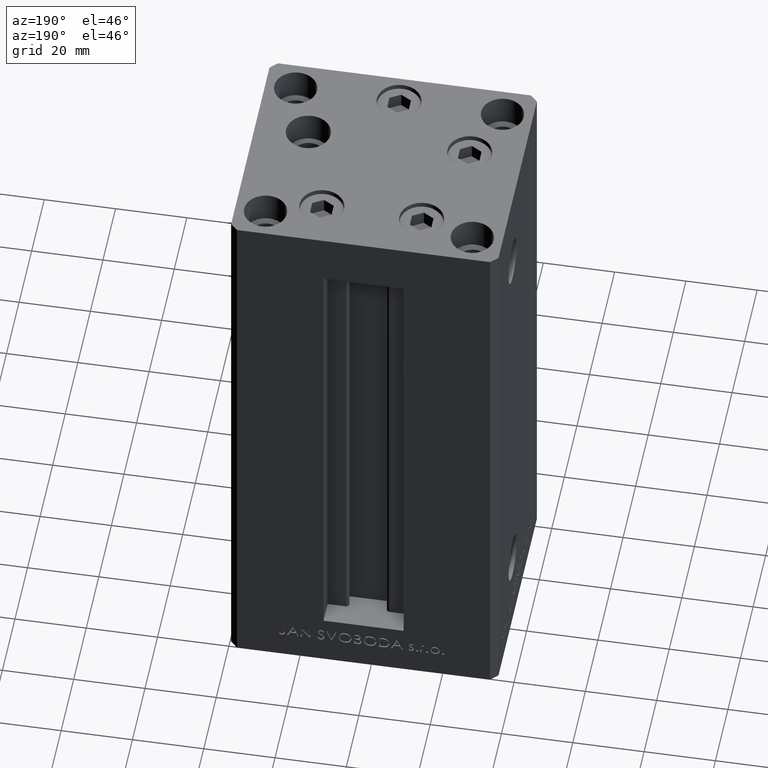
[diagram: clean part render]
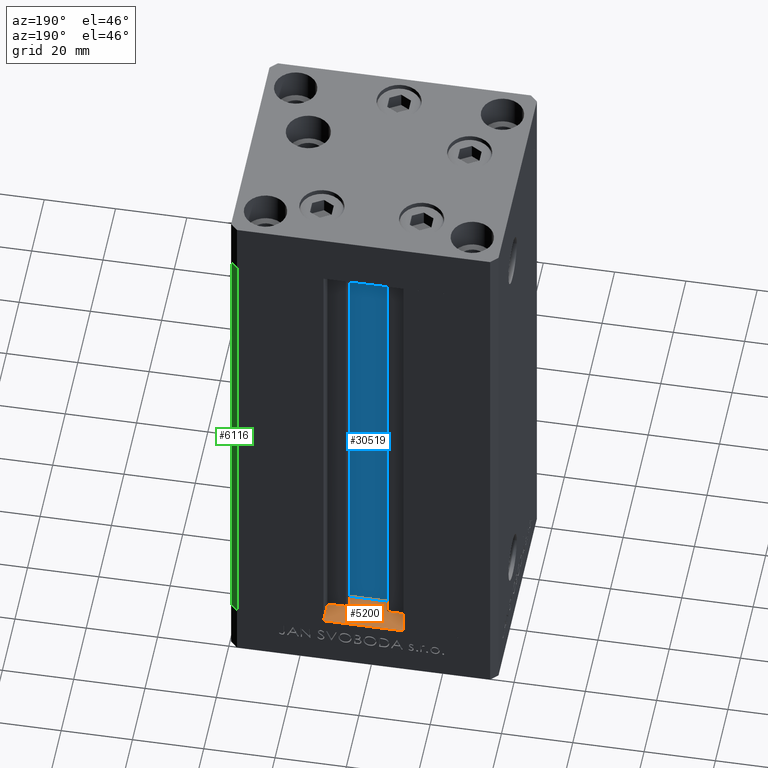
[diagram: same view with three faces highlighted in distinct colors, each labeled with its STEP entity id]
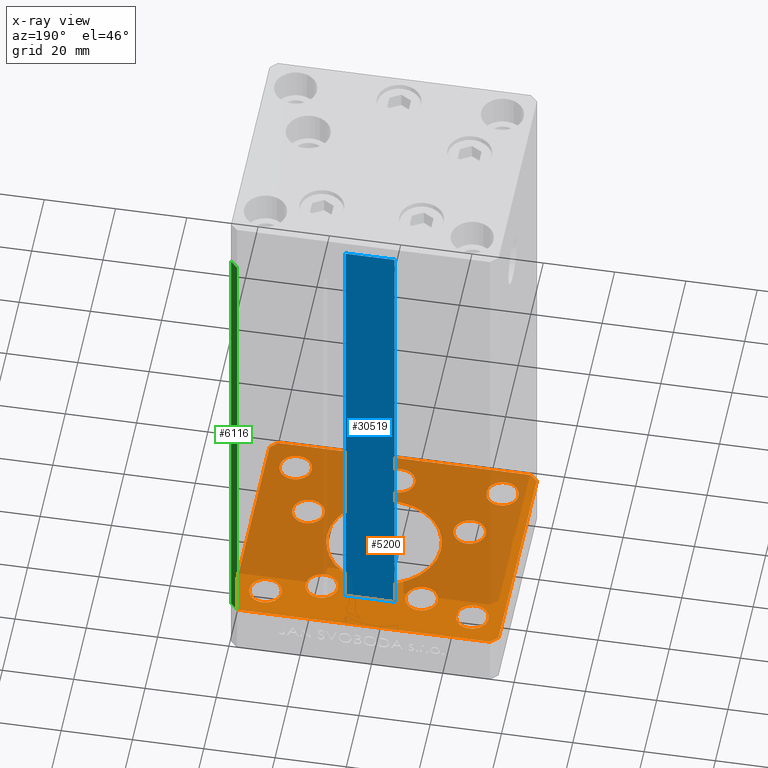
[diagram: x-ray of the same camera — body ghosted, the three highlighted faces saturated]
A machine part, auxiliary view with three faces highlighted in distinct colors.
The next image is the same camera in x-ray (body ghosted, the three faces saturated) — at least one of them is partly hidden behind the body in this view.
Their STEP definitions:

[orange] entity #5200 — the highlighted planar face has unit normal (0, 0, -1).
#98 = AXIS2_PLACEMENT_3D ( 'NONE', #27122, #42443, #15809 ) ;
#193 = CARTESIAN_POINT ( 'NONE',  ( -18.12741699796953654, -8.000000000000000000, -15.00000000000000000 ) ) ;
#447 = VERTEX_POINT ( 'NONE', #45679 ) ;
#465 = ORIENTED_EDGE ( 'NONE', *, *, #28092, .T. ) ;
#982 = CARTESIAN_POINT ( 'NONE',  ( -16.00000000000000000, 1.959434878635765131E-15, -15.00000000000000000 ) ) ;
#1144 = DIRECTION ( 'NONE',  ( 1.000000000000000000, 0.000000000000000000, 0.000000000000000000 ) ) ;
#1308 = ORIENTED_EDGE ( 'NONE', *, *, #4272, .F. ) ;
#1360 = ORIENTED_EDGE ( 'NONE', *, *, #49500, .T. ) ;
#1913 = CIRCLE ( 'NONE', #25961, 4.499999999999997335 ) ;
#2044 = DIRECTION ( 'NONE',  ( 1.000000000000000000, 0.000000000000000000, 0.000000000000000000 ) ) ;
#2185 = VERTEX_POINT ( 'NONE', #16917 ) ;
#2422 = AXIS2_PLACEMENT_3D ( 'NONE', #45399, #23013, #6983 ) ;
#2504 = DIRECTION ( 'NONE',  ( -0.000000000000000000, 0.000000000000000000, 1.000000000000000000 ) ) ;
#2506 = ORIENTED_EDGE ( 'NONE', *, *, #9465, .F. ) ;
#2602 = CIRCLE ( 'NONE', #12241, 4.500000000000000888 ) ;
#2909 = AXIS2_PLACEMENT_3D ( 'NONE', #30500, #10236, #32861 ) ;
#3332 = EDGE_CURVE ( 'NONE', #21086, #5538, #14651, .T. ) ;
#3494 = DIRECTION ( 'NONE',  ( -0.000000000000000000, 0.000000000000000000, 1.000000000000000000 ) ) ;
#3669 = EDGE_CURVE ( 'NONE', #33917, #28512, #39293, .T. ) ;
#4084 = ORIENTED_EDGE ( 'NONE', *, *, #13695, .F. ) ;
#4167 = CIRCLE ( 'NONE', #38652, 4.499999999999997335 ) ;
#4217 = EDGE_LOOP ( 'NONE', ( #42261, #39247, #46666, #32651, #19321, #2506, #42089, #20006 ) ) ;
#4237 = EDGE_CURVE ( 'NONE', #16889, #447, #16736, .T. ) ;
#4272 = EDGE_CURVE ( 'NONE', #26963, #2185, #31304, .T. ) ;
#4527 = CARTESIAN_POINT ( 'NONE',  ( -33.50000000000000000, 24.00000000000000711, -15.00000000000000000 ) ) ;
#4832 = DIRECTION ( 'NONE',  ( -0.7071067811865524577, -0.7071067811865426878, 0.000000000000000000 ) ) ;
#4897 = CARTESIAN_POINT ( 'NONE',  ( -24.50000000000000000, 24.00000000000000711, -15.00000000000000000 ) ) ;
#4898 = DIRECTION ( 'NONE',  ( 1.000000000000000000, 0.000000000000000000, 0.000000000000000000 ) ) ;
#5200 = ADVANCED_FACE ( 'NONE', ( #14052, #22082, #10535, #29877, #40922, #21827, #25855, #17317, #45192, #18303, #33649 ), #25109, .F. ) ;
#5432 = LINE ( 'NONE', #39335, #6366 ) ;
#5538 = VERTEX_POINT ( 'NONE', #29692 ) ;
#5726 = CARTESIAN_POINT ( 'NONE',  ( 24.50000000000000000, 24.00000000000000355, -15.00000000000000000 ) ) ;
#5842 = VERTEX_POINT ( 'NONE', #10796 ) ;
#5879 = EDGE_CURVE ( 'NONE', #5842, #41994, #21346, .T. ) ;
#6027 = CARTESIAN_POINT ( 'NONE',  ( 0.000000000000000000, 0.000000000000000000, -15.00000000000000000 ) ) ;
#6029 = CARTESIAN_POINT ( 'NONE',  ( 0.000000000000000000, -24.00000000000001066, -15.00000000000000000 ) ) ;
#6218 = EDGE_CURVE ( 'NONE', #447, #16889, #44876, .T. ) ;
#6366 = VECTOR ( 'NONE', #20245, 1000.000000000000000 ) ;
#6640 = ORIENTED_EDGE ( 'NONE', *, *, #9727, .T. ) ;
#6826 = DIRECTION ( 'NONE',  ( 1.000000000000000000, 0.000000000000000000, 0.000000000000000000 ) ) ;
#6983 = DIRECTION ( 'NONE',  ( 1.000000000000000000, 0.000000000000000000, 0.000000000000000000 ) ) ;
#8094 = CIRCLE ( 'NONE', #98, 4.500000000000000888 ) ;
#8763 = CARTESIAN_POINT ( 'NONE',  ( 0.000000000000000000, 0.000000000000000000, -15.00000000000000000 ) ) ;
#9426 = CARTESIAN_POINT ( 'NONE',  ( 0.000000000000000000, -24.00000000000001066, -15.00000000000000000 ) ) ;
#9465 = EDGE_CURVE ( 'NONE', #41175, #15720, #46278, .T. ) ;
#9727 = EDGE_CURVE ( 'NONE', #10709, #15275, #8094, .T. ) ;
#9739 = AXIS2_PLACEMENT_3D ( 'NONE', #33226, #29445, #44755 ) ;
#9844 = CARTESIAN_POINT ( 'NONE',  ( -29.00000000000000000, 24.00000000000000711, -15.00000000000000000 ) ) ;
#10236 = DIRECTION ( 'NONE',  ( -0.000000000000000000, 0.000000000000000000, 1.000000000000000000 ) ) ;
#10282 = VERTEX_POINT ( 'NONE', #20663 ) ;
#10535 = FACE_BOUND ( 'NONE', #35045, .T. ) ;
#10709 = VERTEX_POINT ( 'NONE', #16824 ) ;
#10796 = CARTESIAN_POINT ( 'NONE',  ( 35.50000000000000000, 32.49999999999999289, -15.00000000000000000 ) ) ;
#10845 = ORIENTED_EDGE ( 'NONE', *, *, #44516, .T. ) ;
#10921 = VERTEX_POINT ( 'NONE', #5726 ) ;
#11122 = CARTESIAN_POINT ( 'NONE',  ( 33.50000000000000000, 24.00000000000000355, -15.00000000000000000 ) ) ;
#11642 = CARTESIAN_POINT ( 'NONE',  ( 13.99106857963324124, 19.50000000000000000, -15.00000000000000000 ) ) ;
#11790 = CARTESIAN_POINT ( 'NONE',  ( -9.491068579633243019, 19.50000000000000000, -15.00000000000000000 ) ) ;
#11864 = EDGE_LOOP ( 'NONE', ( #44405, #16510 ) ) ;
#12006 = VECTOR ( 'NONE', #17564, 1000.000000000000000 ) ;
#12241 = AXIS2_PLACEMENT_3D ( 'NONE', #46840, #31770, #4898 ) ;
#12398 = DIRECTION ( 'NONE',  ( 1.000000000000000000, 0.000000000000000000, 0.000000000000000000 ) ) ;
#12737 = CARTESIAN_POINT ( 'NONE',  ( -4.500000000000001776, -24.00000000000001066, -15.00000000000000000 ) ) ;
#13176 = EDGE_CURVE ( 'NONE', #41994, #10282, #39226, .T. ) ;
#13267 = ORIENTED_EDGE ( 'NONE', *, *, #25828, .T. ) ;
#13409 = CIRCLE ( 'NONE', #46267, 4.500000000000000888 ) ;
#13413 = VERTEX_POINT ( 'NONE', #24599 ) ;
#13449 = VECTOR ( 'NONE', #4832, 1000.000000000000000 ) ;
#13695 = EDGE_CURVE ( 'NONE', #43652, #23640, #24698, .T. ) ;
#13935 = DIRECTION ( 'NONE',  ( 1.000000000000000000, 0.000000000000000000, 0.000000000000000000 ) ) ;
#14052 = FACE_BOUND ( 'NONE', #39462, .T. ) ;
#14084 = DIRECTION ( 'NONE',  ( 0.7071067811865512365, -0.7071067811865439090, 0.000000000000000000 ) ) ;
#14257 = ORIENTED_EDGE ( 'NONE', *, *, #3669, .T. ) ;
#14585 = CARTESIAN_POINT ( 'NONE',  ( 18.12741699796953299, -8.000000000000000000, -15.00000000000000000 ) ) ;
#14651 = LINE ( 'NONE', #36754, #42510 ) ;
#15275 = VERTEX_POINT ( 'NONE', #14585 ) ;
#15338 = AXIS2_PLACEMENT_3D ( 'NONE', #9426, #29007, #13935 ) ;
#15409 = CARTESIAN_POINT ( 'NONE',  ( 35.50000000000001421, -32.49999999999992184, -15.00000000000000000 ) ) ;
#15442 = AXIS2_PLACEMENT_3D ( 'NONE', #24401, #20885, #2044 ) ;
#15662 = EDGE_CURVE ( 'NONE', #15720, #5842, #22915, .T. ) ;
#15720 = VERTEX_POINT ( 'NONE', #32225 ) ;
#15809 = DIRECTION ( 'NONE',  ( 1.000000000000000000, 0.000000000000000000, 0.000000000000000000 ) ) ;
#15881 = EDGE_CURVE ( 'NONE', #10921, #20388, #13409, .T. ) ;
#16098 = CARTESIAN_POINT ( 'NONE',  ( -24.50000000000000000, -23.99999999999999645, -15.00000000000000000 ) ) ;
#16117 = VECTOR ( 'NONE', #34481, 1000.000000000000000 ) ;
#16335 = AXIS2_PLACEMENT_3D ( 'NONE', #6029, #3494, #22814 ) ;
#16482 = CIRCLE ( 'NONE', #21295, 4.500000000000005329 ) ;
#16487 = ORIENTED_EDGE ( 'NONE', *, *, #44537, .T. ) ;
#16510 = ORIENTED_EDGE ( 'NONE', *, *, #23929, .T. ) ;
#16533 = CARTESIAN_POINT ( 'NONE',  ( -37.50000000000000000, -30.50000000000004263, -15.00000000000000000 ) ) ;
#16736 = CIRCLE ( 'NONE', #36801, 4.499999999999999112 ) ;
#16824 = CARTESIAN_POINT ( 'NONE',  ( 27.12741699796953654, -8.000000000000000000, -15.00000000000000000 ) ) ;
#16864 = CARTESIAN_POINT ( 'NONE',  ( -35.50000000000000711, 32.49999999999997868, -15.00000000000000000 ) ) ;
#16889 = VERTEX_POINT ( 'NONE', #11790 ) ;
#16917 = CARTESIAN_POINT ( 'NONE',  ( -33.50000000000000000, -23.99999999999999645, -15.00000000000000000 ) ) ;
#17022 = ORIENTED_EDGE ( 'NONE', *, *, #22709, .F. ) ;
#17190 = CARTESIAN_POINT ( 'NONE',  ( 9.491068579633235913, 19.50000000000000000, -15.00000000000000000 ) ) ;
#17317 = FACE_BOUND ( 'NONE', #23381, .T. ) ;
#17363 = DIRECTION ( 'NONE',  ( -0.000000000000000000, 0.000000000000000000, 1.000000000000000000 ) ) ;
#17429 = DIRECTION ( 'NONE',  ( -0.000000000000000000, 0.000000000000000000, 1.000000000000000000 ) ) ;
#17564 = DIRECTION ( 'NONE',  ( -1.000000000000000000, -1.954618001100627573E-16, 0.000000000000000000 ) ) ;
#18303 = FACE_BOUND ( 'NONE', #44254, .T. ) ;
#18419 = DIRECTION ( 'NONE',  ( 1.000000000000000000, 1.172770800660376149E-15, 0.000000000000000000 ) ) ;
#18437 = CIRCLE ( 'NONE', #21628, 16.00000000000000000 ) ;
#18609 = EDGE_LOOP ( 'NONE', ( #6640, #33869 ) ) ;
#18652 = CARTESIAN_POINT ( 'NONE',  ( 29.00000000000000000, 24.00000000000000355, -15.00000000000000000 ) ) ;
#19191 = AXIS2_PLACEMENT_3D ( 'NONE', #6027, #33148, #29372 ) ;
#19301 = DIRECTION ( 'NONE',  ( 0.000000000000000000, -0.000000000000000000, -1.000000000000000000 ) ) ;
#19321 = ORIENTED_EDGE ( 'NONE', *, *, #15662, .F. ) ;
#19965 = VERTEX_POINT ( 'NONE', #12737 ) ;
#20006 = ORIENTED_EDGE ( 'NONE', *, *, #3332, .F. ) ;
#20245 = DIRECTION ( 'NONE',  ( 2.275047181608926165E-16, -1.000000000000000000, 0.000000000000000000 ) ) ;
#20388 = VERTEX_POINT ( 'NONE', #11122 ) ;
#20663 = CARTESIAN_POINT ( 'NONE',  ( -37.50000000000001421, 30.50000000000000000, -15.00000000000000000 ) ) ;
#20885 = DIRECTION ( 'NONE',  ( -0.000000000000000000, 0.000000000000000000, 1.000000000000000000 ) ) ;
#21086 = VERTEX_POINT ( 'NONE', #38484 ) ;
#21295 = AXIS2_PLACEMENT_3D ( 'NONE', #11642, #27468, #12398 ) ;
#21346 = LINE ( 'NONE', #36658, #12006 ) ;
#21628 = AXIS2_PLACEMENT_3D ( 'NONE', #8763, #19301, #46947 ) ;
#21644 = AXIS2_PLACEMENT_3D ( 'NONE', #9844, #17363, #44731 ) ;
#21827 = FACE_BOUND ( 'NONE', #46934, .T. ) ;
#21832 = EDGE_CURVE ( 'NONE', #10282, #40064, #5432, .T. ) ;
#21993 = DIRECTION ( 'NONE',  ( 1.000000000000000000, 0.000000000000000000, 0.000000000000000000 ) ) ;
#22082 = FACE_BOUND ( 'NONE', #11864, .T. ) ;
#22132 = EDGE_CURVE ( 'NONE', #5538, #41175, #30249, .T. ) ;
#22208 = VECTOR ( 'NONE', #34245, 1000.000000000000000 ) ;
#22709 = EDGE_CURVE ( 'NONE', #23640, #43652, #18437, .T. ) ;
#22814 = DIRECTION ( 'NONE',  ( 1.000000000000000000, 0.000000000000000000, 0.000000000000000000 ) ) ;
#22915 = LINE ( 'NONE', #42511, #22208 ) ;
#23013 = DIRECTION ( 'NONE',  ( -0.000000000000000000, 0.000000000000000000, 1.000000000000000000 ) ) ;
#23381 = EDGE_LOOP ( 'NONE', ( #1308, #41716 ) ) ;
#23640 = VERTEX_POINT ( 'NONE', #31127 ) ;
#23910 = CARTESIAN_POINT ( 'NONE',  ( 29.00000000000000355, -23.99999999999999645, -15.00000000000000000 ) ) ;
#23929 = EDGE_CURVE ( 'NONE', #13413, #34306, #46560, .T. ) ;
#24062 = CARTESIAN_POINT ( 'NONE',  ( -13.99106857963324124, 19.50000000000000000, -15.00000000000000000 ) ) ;
#24347 = CIRCLE ( 'NONE', #16335, 4.500000000000001776 ) ;
#24401 = CARTESIAN_POINT ( 'NONE',  ( -22.62741699796953299, -8.000000000000000000, -15.00000000000000000 ) ) ;
#24488 = DIRECTION ( 'NONE',  ( 0.000000000000000000, -0.000000000000000000, -1.000000000000000000 ) ) ;
#24599 = CARTESIAN_POINT ( 'NONE',  ( -27.12741699796953299, -8.000000000000000000, -15.00000000000000000 ) ) ;
#24698 = CIRCLE ( 'NONE', #34297, 16.00000000000000000 ) ;
#25075 = CIRCLE ( 'NONE', #15442, 4.499999999999997335 ) ;
#25109 = PLANE ( 'NONE',  #19191 ) ;
#25558 = CARTESIAN_POINT ( 'NONE',  ( 24.50000000000000711, -23.99999999999999645, -15.00000000000000000 ) ) ;
#25656 = AXIS2_PLACEMENT_3D ( 'NONE', #24062, #32116, #28343 ) ;
#25828 = EDGE_CURVE ( 'NONE', #28512, #33917, #47432, .T. ) ;
#25833 = CIRCLE ( 'NONE', #49110, 4.500000000000000888 ) ;
#25855 = FACE_BOUND ( 'NONE', #36902, .T. ) ;
#25961 = AXIS2_PLACEMENT_3D ( 'NONE', #29374, #2504, #29123 ) ;
#26257 = DIRECTION ( 'NONE',  ( -0.000000000000000000, 0.000000000000000000, 1.000000000000000000 ) ) ;
#26568 = DIRECTION ( 'NONE',  ( 0.000000000000000000, -0.000000000000000000, -1.000000000000000000 ) ) ;
#26963 = VERTEX_POINT ( 'NONE', #16098 ) ;
#27122 = CARTESIAN_POINT ( 'NONE',  ( 22.62741699796953299, -8.000000000000000000, -15.00000000000000000 ) ) ;
#27179 = DIRECTION ( 'NONE',  ( 1.000000000000000000, 0.000000000000000000, 0.000000000000000000 ) ) ;
#27326 = VERTEX_POINT ( 'NONE', #27855 ) ;
#27441 = VECTOR ( 'NONE', #14084, 1000.000000000000000 ) ;
#27468 = DIRECTION ( 'NONE',  ( -0.000000000000000000, 0.000000000000000000, 1.000000000000000000 ) ) ;
#27512 = ORIENTED_EDGE ( 'NONE', *, *, #27990, .F. ) ;
#27647 = EDGE_LOOP ( 'NONE', ( #10845, #465 ) ) ;
#27855 = CARTESIAN_POINT ( 'NONE',  ( 33.50000000000000000, -23.99999999999999645, -15.00000000000000000 ) ) ;
#27990 = EDGE_CURVE ( 'NONE', #20388, #10921, #25833, .T. ) ;
#28092 = EDGE_CURVE ( 'NONE', #40132, #27326, #4167, .T. ) ;
#28189 = DIRECTION ( 'NONE',  ( -0.000000000000000000, 0.000000000000000000, 1.000000000000000000 ) ) ;
#28343 = DIRECTION ( 'NONE',  ( 1.000000000000000000, 0.000000000000000000, 0.000000000000000000 ) ) ;
#28512 = VERTEX_POINT ( 'NONE', #4527 ) ;
#28787 = ORIENTED_EDGE ( 'NONE', *, *, #29848, .T. ) ;
#29007 = DIRECTION ( 'NONE',  ( -0.000000000000000000, 0.000000000000000000, 1.000000000000000000 ) ) ;
#29056 = AXIS2_PLACEMENT_3D ( 'NONE', #33314, #26257, #21993 ) ;
#29123 = DIRECTION ( 'NONE',  ( 1.000000000000000000, 0.000000000000000000, 0.000000000000000000 ) ) ;
#29372 = DIRECTION ( 'NONE',  ( 1.000000000000000000, 0.000000000000000000, 0.000000000000000000 ) ) ;
#29374 = CARTESIAN_POINT ( 'NONE',  ( 29.00000000000000355, -23.99999999999999645, -15.00000000000000000 ) ) ;
#29424 = DIRECTION ( 'NONE',  ( 0.000000000000000000, -0.000000000000000000, -1.000000000000000000 ) ) ;
#29445 = DIRECTION ( 'NONE',  ( -0.000000000000000000, 0.000000000000000000, 1.000000000000000000 ) ) ;
#29692 = CARTESIAN_POINT ( 'NONE',  ( 35.50000000000001421, -32.49999999999992184, -15.00000000000000000 ) ) ;
#29848 = EDGE_CURVE ( 'NONE', #19965, #48909, #49071, .T. ) ;
#29877 = FACE_BOUND ( 'NONE', #18609, .T. ) ;
#30249 = LINE ( 'NONE', #15409, #40892 ) ;
#30337 = CARTESIAN_POINT ( 'NONE',  ( 0.000000000000000000, 0.000000000000000000, -15.00000000000000000 ) ) ;
#30500 = CARTESIAN_POINT ( 'NONE',  ( 13.99106857963324124, 19.50000000000000000, -15.00000000000000000 ) ) ;
#30708 = DIRECTION ( 'NONE',  ( 0.000000000000000000, -0.000000000000000000, -1.000000000000000000 ) ) ;
#30877 = CARTESIAN_POINT ( 'NONE',  ( 37.50000000000000711, -30.49999999999992895, -15.00000000000000000 ) ) ;
#31127 = CARTESIAN_POINT ( 'NONE',  ( 16.00000000000000000, 0.000000000000000000, -15.00000000000000000 ) ) ;
#31187 = AXIS2_PLACEMENT_3D ( 'NONE', #47607, #24488, #1144 ) ;
#31304 = CIRCLE ( 'NONE', #31187, 4.500000000000000888 ) ;
#31359 = EDGE_CURVE ( 'NONE', #40064, #21086, #43992, .T. ) ;
#31770 = DIRECTION ( 'NONE',  ( 0.000000000000000000, -0.000000000000000000, -1.000000000000000000 ) ) ;
#32116 = DIRECTION ( 'NONE',  ( -0.000000000000000000, 0.000000000000000000, 1.000000000000000000 ) ) ;
#32210 = EDGE_CURVE ( 'NONE', #15275, #10709, #45897, .T. ) ;
#32225 = CARTESIAN_POINT ( 'NONE',  ( 37.50000000000000711, 30.50000000000001421, -15.00000000000000000 ) ) ;
#32256 = EDGE_CURVE ( 'NONE', #2185, #26963, #2602, .T. ) ;
#32419 = ORIENTED_EDGE ( 'NONE', *, *, #48496, .T. ) ;
#32651 = ORIENTED_EDGE ( 'NONE', *, *, #5879, .F. ) ;
#32861 = DIRECTION ( 'NONE',  ( 1.000000000000000000, 0.000000000000000000, 0.000000000000000000 ) ) ;
#32908 = VERTEX_POINT ( 'NONE', #46912 ) ;
#33148 = DIRECTION ( 'NONE',  ( -0.000000000000000000, 0.000000000000000000, 1.000000000000000000 ) ) ;
#33190 = EDGE_CURVE ( 'NONE', #34306, #13413, #25075, .T. ) ;
#33226 = CARTESIAN_POINT ( 'NONE',  ( -29.00000000000000000, 24.00000000000000711, -15.00000000000000000 ) ) ;
#33314 = CARTESIAN_POINT ( 'NONE',  ( 22.62741699796953299, -8.000000000000000000, -15.00000000000000000 ) ) ;
#33649 = FACE_BOUND ( 'NONE', #27647, .T. ) ;
#33869 = ORIENTED_EDGE ( 'NONE', *, *, #32210, .T. ) ;
#33917 = VERTEX_POINT ( 'NONE', #4897 ) ;
#34245 = DIRECTION ( 'NONE',  ( -0.7071067811865524577, 0.7071067811865426878, 0.000000000000000000 ) ) ;
#34297 = AXIS2_PLACEMENT_3D ( 'NONE', #30337, #26568, #41889 ) ;
#34306 = VERTEX_POINT ( 'NONE', #193 ) ;
#34481 = DIRECTION ( 'NONE',  ( 0.000000000000000000, 1.000000000000000000, 0.000000000000000000 ) ) ;
#35045 = EDGE_LOOP ( 'NONE', ( #16487, #28787 ) ) ;
#35217 = DIRECTION ( 'NONE',  ( 1.000000000000000000, 0.000000000000000000, 0.000000000000000000 ) ) ;
#35611 = ORIENTED_EDGE ( 'NONE', *, *, #4237, .T. ) ;
#36294 = CARTESIAN_POINT ( 'NONE',  ( -13.99106857963324124, 19.50000000000000000, -15.00000000000000000 ) ) ;
#36345 = EDGE_LOOP ( 'NONE', ( #32419, #1360 ) ) ;
#36530 = DIRECTION ( 'NONE',  ( 1.000000000000000000, 0.000000000000000000, 0.000000000000000000 ) ) ;
#36658 = CARTESIAN_POINT ( 'NONE',  ( 35.50000000000000000, 32.49999999999999289, -15.00000000000000000 ) ) ;
#36660 = CARTESIAN_POINT ( 'NONE',  ( 4.500000000000001776, -24.00000000000001066, -15.00000000000000000 ) ) ;
#36697 = CARTESIAN_POINT ( 'NONE',  ( 29.00000000000000000, 24.00000000000000355, -15.00000000000000000 ) ) ;
#36754 = CARTESIAN_POINT ( 'NONE',  ( -35.50000000000001421, -32.50000000000000711, -15.00000000000000000 ) ) ;
#36801 = AXIS2_PLACEMENT_3D ( 'NONE', #36294, #17429, #36530 ) ;
#36902 = EDGE_LOOP ( 'NONE', ( #27512, #38209 ) ) ;
#37778 = VERTEX_POINT ( 'NONE', #17190 ) ;
#38020 = DIRECTION ( 'NONE',  ( 0.7071067811865463515, 0.7071067811865487940, 0.000000000000000000 ) ) ;
#38209 = ORIENTED_EDGE ( 'NONE', *, *, #15881, .F. ) ;
#38484 = CARTESIAN_POINT ( 'NONE',  ( -35.50000000000001421, -32.50000000000000711, -15.00000000000000000 ) ) ;
#38652 = AXIS2_PLACEMENT_3D ( 'NONE', #23910, #28189, #35217 ) ;
#39069 = CARTESIAN_POINT ( 'NONE',  ( -35.50000000000000711, 32.49999999999997868, -15.00000000000000000 ) ) ;
#39226 = LINE ( 'NONE', #16864, #13449 ) ;
#39247 = ORIENTED_EDGE ( 'NONE', *, *, #21832, .F. ) ;
#39293 = CIRCLE ( 'NONE', #21644, 4.500000000000000888 ) ;
#39335 = CARTESIAN_POINT ( 'NONE',  ( -37.50000000000001421, 30.50000000000000000, -15.00000000000000000 ) ) ;
#39462 = EDGE_LOOP ( 'NONE', ( #17022, #4084 ) ) ;
#40064 = VERTEX_POINT ( 'NONE', #16533 ) ;
#40132 = VERTEX_POINT ( 'NONE', #25558 ) ;
#40223 = CARTESIAN_POINT ( 'NONE',  ( -37.50000000000000000, -30.50000000000004263, -15.00000000000000000 ) ) ;
#40892 = VECTOR ( 'NONE', #38020, 1000.000000000000000 ) ;
#40922 = FACE_BOUND ( 'NONE', #36345, .T. ) ;
#41175 = VERTEX_POINT ( 'NONE', #30877 ) ;
#41716 = ORIENTED_EDGE ( 'NONE', *, *, #32256, .F. ) ;
#41889 = DIRECTION ( 'NONE',  ( 1.000000000000000000, 0.000000000000000000, 0.000000000000000000 ) ) ;
#41994 = VERTEX_POINT ( 'NONE', #39069 ) ;
#42089 = ORIENTED_EDGE ( 'NONE', *, *, #22132, .F. ) ;
#42261 = ORIENTED_EDGE ( 'NONE', *, *, #31359, .F. ) ;
#42443 = DIRECTION ( 'NONE',  ( -0.000000000000000000, 0.000000000000000000, 1.000000000000000000 ) ) ;
#42510 = VECTOR ( 'NONE', #18419, 1000.000000000000000 ) ;
#42511 = CARTESIAN_POINT ( 'NONE',  ( 37.50000000000000711, 30.50000000000001421, -15.00000000000000000 ) ) ;
#43168 = ORIENTED_EDGE ( 'NONE', *, *, #6218, .T. ) ;
#43652 = VERTEX_POINT ( 'NONE', #982 ) ;
#43992 = LINE ( 'NONE', #40223, #27441 ) ;
#44254 = EDGE_LOOP ( 'NONE', ( #14257, #13267 ) ) ;
#44405 = ORIENTED_EDGE ( 'NONE', *, *, #33190, .T. ) ;
#44516 = EDGE_CURVE ( 'NONE', #27326, #40132, #1913, .T. ) ;
#44537 = EDGE_CURVE ( 'NONE', #48909, #19965, #24347, .T. ) ;
#44731 = DIRECTION ( 'NONE',  ( 1.000000000000000000, 0.000000000000000000, 0.000000000000000000 ) ) ;
#44755 = DIRECTION ( 'NONE',  ( 1.000000000000000000, 0.000000000000000000, 0.000000000000000000 ) ) ;
#44876 = CIRCLE ( 'NONE', #25656, 4.499999999999999112 ) ;
#45192 = FACE_OUTER_BOUND ( 'NONE', #4217, .T. ) ;
#45385 = CIRCLE ( 'NONE', #2909, 4.500000000000005329 ) ;
#45399 = CARTESIAN_POINT ( 'NONE',  ( -22.62741699796953299, -8.000000000000000000, -15.00000000000000000 ) ) ;
#45679 = CARTESIAN_POINT ( 'NONE',  ( -18.49106857963323947, 19.50000000000000000, -15.00000000000000000 ) ) ;
#45897 = CIRCLE ( 'NONE', #29056, 4.500000000000000888 ) ;
#46267 = AXIS2_PLACEMENT_3D ( 'NONE', #36697, #29424, #6826 ) ;
#46278 = LINE ( 'NONE', #47041, #16117 ) ;
#46560 = CIRCLE ( 'NONE', #2422, 4.499999999999997335 ) ;
#46666 = ORIENTED_EDGE ( 'NONE', *, *, #13176, .F. ) ;
#46840 = CARTESIAN_POINT ( 'NONE',  ( -29.00000000000000000, -23.99999999999999645, -15.00000000000000000 ) ) ;
#46912 = CARTESIAN_POINT ( 'NONE',  ( 18.49106857963324657, 19.50000000000000000, -15.00000000000000000 ) ) ;
#46934 = EDGE_LOOP ( 'NONE', ( #35611, #43168 ) ) ;
#46947 = DIRECTION ( 'NONE',  ( 1.000000000000000000, 0.000000000000000000, 0.000000000000000000 ) ) ;
#47041 = CARTESIAN_POINT ( 'NONE',  ( 37.50000000000000711, -30.49999999999992895, -15.00000000000000000 ) ) ;
#47432 = CIRCLE ( 'NONE', #9739, 4.500000000000000888 ) ;
#47607 = CARTESIAN_POINT ( 'NONE',  ( -29.00000000000000000, -23.99999999999999645, -15.00000000000000000 ) ) ;
#48496 = EDGE_CURVE ( 'NONE', #32908, #37778, #16482, .T. ) ;
#48909 = VERTEX_POINT ( 'NONE', #36660 ) ;
#49071 = CIRCLE ( 'NONE', #15338, 4.500000000000001776 ) ;
#49110 = AXIS2_PLACEMENT_3D ( 'NONE', #18652, #30708, #27179 ) ;
#49500 = EDGE_CURVE ( 'NONE', #37778, #32908, #45385, .T. ) ;

[blue] entity #30519 — the highlighted planar face has unit normal (0, -1, 0).
#1148 = ORIENTED_EDGE ( 'NONE', *, *, #35132, .F. ) ;
#3082 = CARTESIAN_POINT ( 'NONE',  ( -6.876153656360466826, 21.99999999999986855, 136.0000000000000000 ) ) ;
#3324 = DIRECTION ( 'NONE',  ( -0.000000000000000000, -0.000000000000000000, 1.000000000000000000 ) ) ;
#3666 = LINE ( 'NONE', #25788, #4412 ) ;
#4412 = VECTOR ( 'NONE', #34309, 1000.000000000000000 ) ;
#5933 = ORIENTED_EDGE ( 'NONE', *, *, #49162, .T. ) ;
#7266 = DIRECTION ( 'NONE',  ( -0.000000000000000000, -0.000000000000000000, 1.000000000000000000 ) ) ;
#7463 = VERTEX_POINT ( 'NONE', #3082 ) ;
#7925 = EDGE_LOOP ( 'NONE', ( #8372, #1148, #5933, #40130 ) ) ;
#8372 = ORIENTED_EDGE ( 'NONE', *, *, #26767, .F. ) ;
#9575 = FACE_OUTER_BOUND ( 'NONE', #7925, .T. ) ;
#9638 = VERTEX_POINT ( 'NONE', #25899 ) ;
#9820 = PLANE ( 'NONE',  #40287 ) ;
#13928 = VECTOR ( 'NONE', #22367, 1000.000000000000000 ) ;
#14085 = VECTOR ( 'NONE', #7266, 1000.000000000000000 ) ;
#15608 = CARTESIAN_POINT ( 'NONE',  ( 6.876153656360466826, 21.99999999999986855, 136.0000000000000000 ) ) ;
#17749 = VECTOR ( 'NONE', #3324, 1000.000000000000000 ) ;
#21605 = DIRECTION ( 'NONE',  ( 0.000000000000000000, 0.000000000000000000, -1.000000000000000000 ) ) ;
#21839 = CARTESIAN_POINT ( 'NONE',  ( -6.876153656360466826, 21.99999999999986855, 0.000000000000000000 ) ) ;
#22367 = DIRECTION ( 'NONE',  ( 1.000000000000000000, -0.000000000000000000, -0.000000000000000000 ) ) ;
#22401 = LINE ( 'NONE', #44764, #17749 ) ;
#24892 = DIRECTION ( 'NONE',  ( 0.000000000000000000, -1.000000000000000000, -0.000000000000000000 ) ) ;
#25788 = CARTESIAN_POINT ( 'NONE',  ( 0.000000000000000000, 21.99999999999986855, 136.0000000000000000 ) ) ;
#25899 = CARTESIAN_POINT ( 'NONE',  ( 6.876153656360466826, 21.99999999999986855, 0.000000000000000000 ) ) ;
#26767 = EDGE_CURVE ( 'NONE', #9638, #38689, #22401, .T. ) ;
#30519 = ADVANCED_FACE ( 'NONE', ( #9575 ), #9820, .F. ) ;
#32300 = CARTESIAN_POINT ( 'NONE',  ( -6.876153656360466826, 21.99999999999986855, 0.000000000000000000 ) ) ;
#33943 = CARTESIAN_POINT ( 'NONE',  ( 6.876153656360466826, 21.99999999999986855, 0.000000000000000000 ) ) ;
#34309 = DIRECTION ( 'NONE',  ( -1.000000000000000000, 0.000000000000000000, 0.000000000000000000 ) ) ;
#35132 = EDGE_CURVE ( 'NONE', #47586, #9638, #48761, .T. ) ;
#38689 = VERTEX_POINT ( 'NONE', #15608 ) ;
#39968 = CARTESIAN_POINT ( 'NONE',  ( 6.876153656360466826, 21.99999999999986855, 0.000000000000000000 ) ) ;
#40130 = ORIENTED_EDGE ( 'NONE', *, *, #47333, .F. ) ;
#40287 = AXIS2_PLACEMENT_3D ( 'NONE', #39968, #24892, #21605 ) ;
#41673 = LINE ( 'NONE', #21839, #14085 ) ;
#44764 = CARTESIAN_POINT ( 'NONE',  ( 6.876153656360466826, 21.99999999999986855, 0.000000000000000000 ) ) ;
#47333 = EDGE_CURVE ( 'NONE', #38689, #7463, #3666, .T. ) ;
#47586 = VERTEX_POINT ( 'NONE', #32300 ) ;
#48761 = LINE ( 'NONE', #33943, #13928 ) ;
#49162 = EDGE_CURVE ( 'NONE', #47586, #7463, #41673, .T. ) ;

[green] entity #6116 — the highlighted planar face has unit normal (0.7071, 0.7071, 0).
#21 = EDGE_CURVE ( 'NONE', #49400, #11505, #15402, .T. ) ;
#464 = PLANE ( 'NONE',  #48121 ) ;
#790 = VECTOR ( 'NONE', #48516, 1000.000000000000000 ) ;
#887 = ORIENTED_EDGE ( 'NONE', *, *, #3603, .T. ) ;
#2680 = ORIENTED_EDGE ( 'NONE', *, *, #21, .F. ) ;
#2959 = CARTESIAN_POINT ( 'NONE',  ( 35.50000000000000000, 32.49999999999999289, 0.000000000000000000 ) ) ;
#3603 = EDGE_CURVE ( 'NONE', #18428, #6909, #29670, .T. ) ;
#3782 = ORIENTED_EDGE ( 'NONE', *, *, #34212, .T. ) ;
#6116 = ADVANCED_FACE ( 'NONE', ( #14610 ), #464, .T. ) ;
#6575 = CARTESIAN_POINT ( 'NONE',  ( 37.50000000000000711, 30.50000000000000000, 136.0000000000000000 ) ) ;
#6677 = VECTOR ( 'NONE', #32864, 1000.000000000000114 ) ;
#6909 = VERTEX_POINT ( 'NONE', #40745 ) ;
#11115 = VECTOR ( 'NONE', #22934, 1000.000000000000000 ) ;
#11505 = VERTEX_POINT ( 'NONE', #2959 ) ;
#14610 = FACE_OUTER_BOUND ( 'NONE', #29768, .T. ) ;
#15402 = LINE ( 'NONE', #21960, #11115 ) ;
#17515 = CARTESIAN_POINT ( 'NONE',  ( 35.50000000000000000, 32.49999999999999289, 0.000000000000000000 ) ) ;
#18428 = VERTEX_POINT ( 'NONE', #39547 ) ;
#19775 = DIRECTION ( 'NONE',  ( 0.7071067811865500152, -0.7071067811865451302, 0.000000000000000000 ) ) ;
#21182 = ORIENTED_EDGE ( 'NONE', *, *, #43865, .F. ) ;
#21960 = CARTESIAN_POINT ( 'NONE',  ( 35.50000000000000000, 32.49999999999999289, 136.0000000000000000 ) ) ;
#22934 = DIRECTION ( 'NONE',  ( -0.000000000000000000, -0.000000000000000000, -1.000000000000000000 ) ) ;
#26407 = DIRECTION ( 'NONE',  ( 0.7071067811865451302, 0.7071067811865500152, -0.000000000000000000 ) ) ;
#26818 = LINE ( 'NONE', #30340, #37925 ) ;
#29670 = LINE ( 'NONE', #6575, #790 ) ;
#29768 = EDGE_LOOP ( 'NONE', ( #21182, #2680, #3782, #887 ) ) ;
#29938 = DIRECTION ( 'NONE',  ( -0.7071067811865500152, 0.7071067811865451302, 0.000000000000000000 ) ) ;
#30340 = CARTESIAN_POINT ( 'NONE',  ( 35.50000000000000000, 32.49999999999999289, 136.0000000000000000 ) ) ;
#32864 = DIRECTION ( 'NONE',  ( 0.7071067811865500152, -0.7071067811865451302, 0.000000000000000000 ) ) ;
#34212 = EDGE_CURVE ( 'NONE', #49400, #18428, #26818, .T. ) ;
#35120 = CARTESIAN_POINT ( 'NONE',  ( 35.50000000000000000, 32.49999999999999289, 136.0000000000000000 ) ) ;
#35383 = CARTESIAN_POINT ( 'NONE',  ( 35.50000000000000000, 32.49999999999999289, 136.0000000000000000 ) ) ;
#36612 = LINE ( 'NONE', #17515, #6677 ) ;
#37925 = VECTOR ( 'NONE', #19775, 1000.000000000000114 ) ;
#39547 = CARTESIAN_POINT ( 'NONE',  ( 37.50000000000000711, 30.50000000000000000, 136.0000000000000000 ) ) ;
#40745 = CARTESIAN_POINT ( 'NONE',  ( 37.50000000000000711, 30.50000000000000000, 0.000000000000000000 ) ) ;
#43865 = EDGE_CURVE ( 'NONE', #11505, #6909, #36612, .T. ) ;
#48121 = AXIS2_PLACEMENT_3D ( 'NONE', #35120, #26407, #29938 ) ;
#48516 = DIRECTION ( 'NONE',  ( -0.000000000000000000, -0.000000000000000000, -1.000000000000000000 ) ) ;
#49400 = VERTEX_POINT ( 'NONE', #35383 ) ;